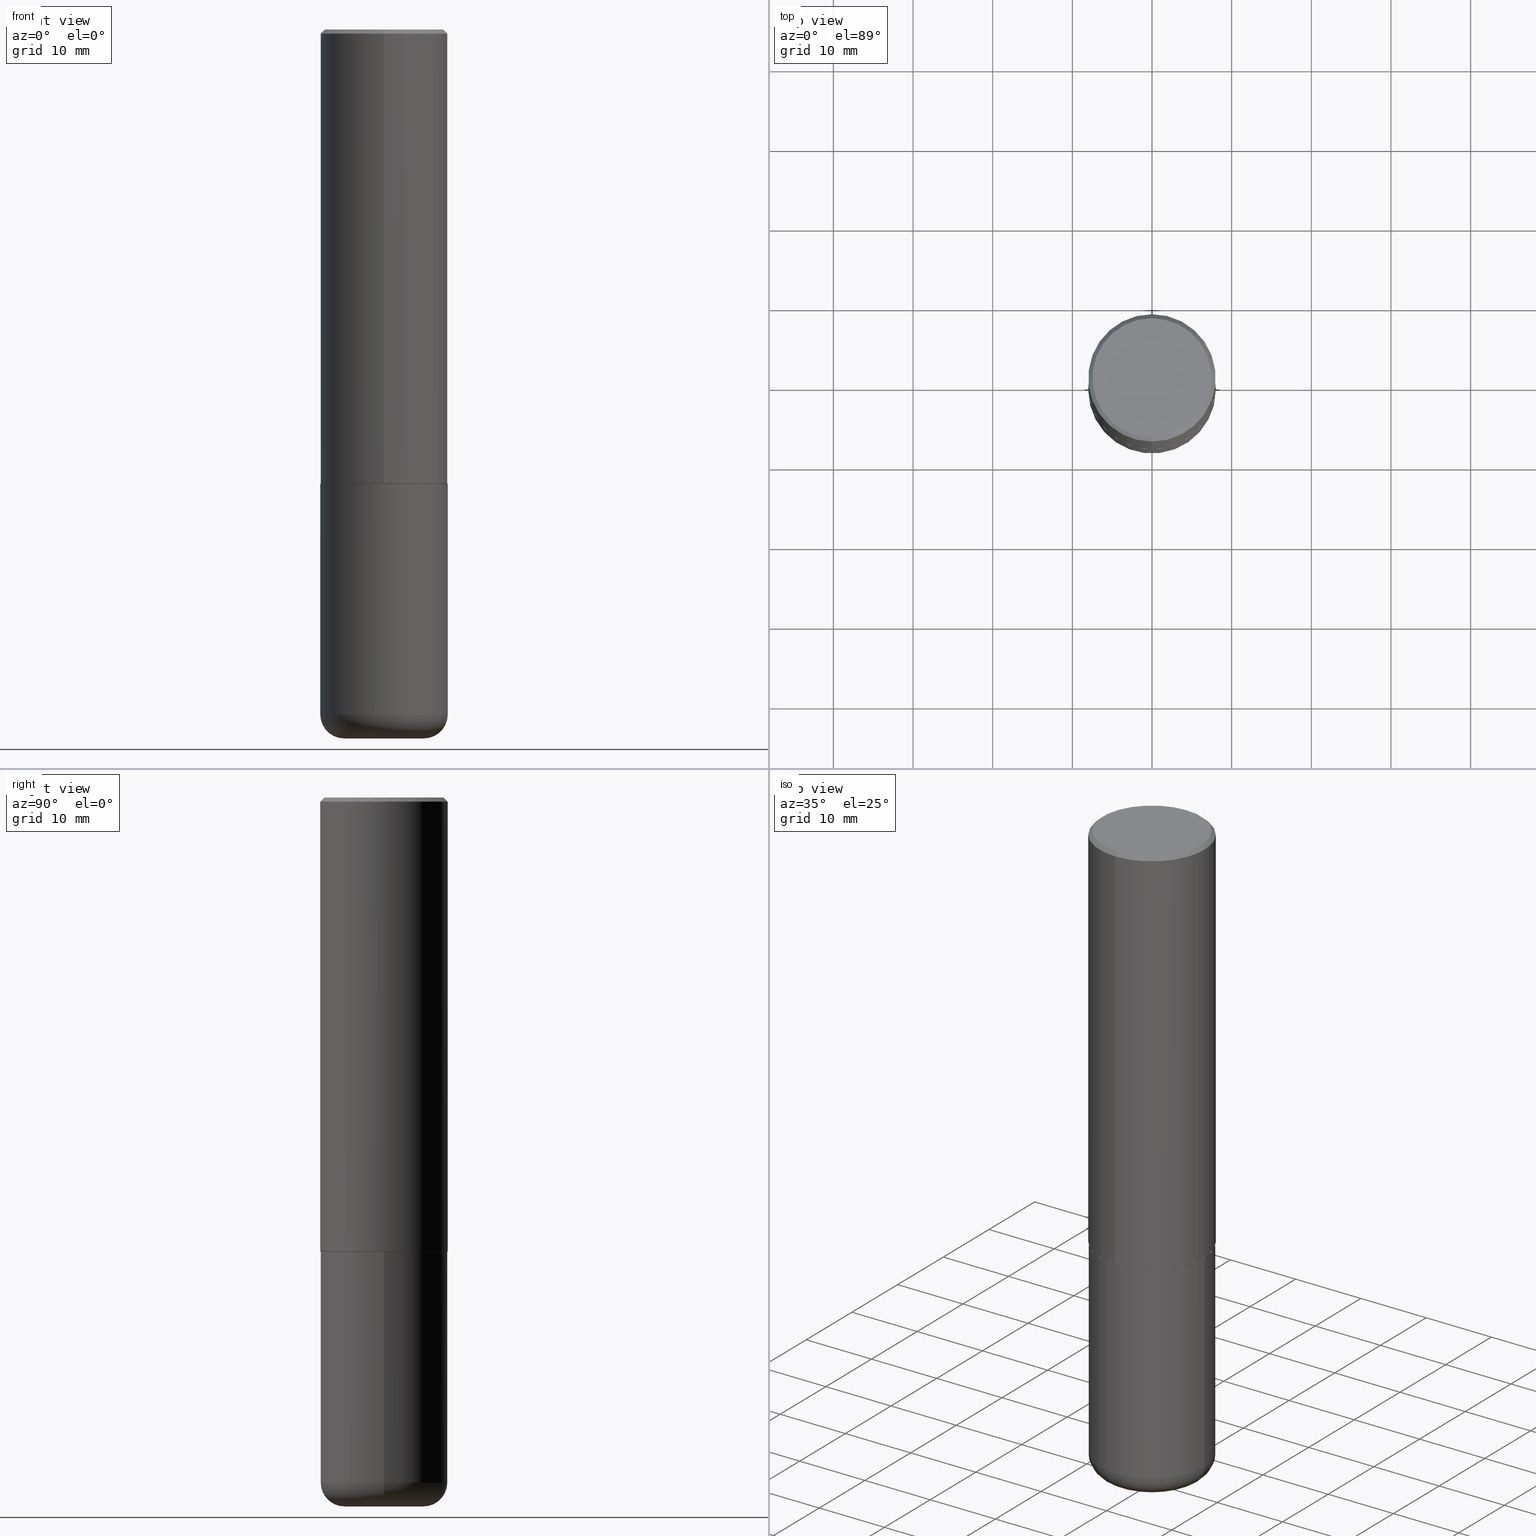
[diagram: canonical four-view strip — front | top / right | iso, engineering-drawing reading convention]
A machine part, canonical four-view strip (front | top / right | iso — engineering-drawing reading convention). The complete STEP part file that produces these views, byte-faithful:
ISO-10303-21;
HEADER;
FILE_DESCRIPTION (( 'STEP AP203' ),
    '1' );
FILE_NAME ('42691.STEP',
    '2024-03-04T02:05:16',
    ( '' ),
    ( '' ),
    'SwSTEP 2.0',
    'SolidWorks 2023',
    '' );
FILE_SCHEMA (( 'CONFIG_CONTROL_DESIGN' ));
ENDSEC;

DATA;
#1 = APPLICATION_CONTEXT ( 'configuration controlled 3d designs of mechanical parts and assemblies' ) ;
#2 = ORIENTED_EDGE ( 'NONE', *, *, #125, .F. ) ;
#3 = PERSON_AND_ORGANIZATION_ROLE ( 'design_owner' ) ;
#4 = ORIENTED_EDGE ( 'NONE', *, *, #296, .T. ) ;
#5 = EDGE_CURVE ( 'NONE', #61, #344, #300, .T. ) ;
#6 = AXIS2_PLACEMENT_3D ( 'NONE', #13, #116, #318 ) ;
#7 = PERSON_AND_ORGANIZATION_ROLE ( 'creator' ) ;
#8 = ORIENTED_EDGE ( 'NONE', *, *, #22, .F. ) ;
#9 = ORIENTED_EDGE ( 'NONE', *, *, #337, .F. ) ;
#10 = ORIENTED_EDGE ( 'NONE', *, *, #206, .F. ) ;
#11 = COORDINATED_UNIVERSAL_TIME_OFFSET ( 5, 0, .BEHIND. ) ;
#12 = APPROVAL_PERSON_ORGANIZATION ( #174, #411, #314 ) ;
#13 = CARTESIAN_POINT ( 'NONE',  ( 1.535981576382081653E-28, -2.508505872621105694E-15, -3.503899999999999793 ) ) ;
#14 = CARTESIAN_POINT ( 'NONE',  ( 5.487876547960064752E-29, -7.835233272497900762E-15, -2.244099999999999540 ) ) ;
#15 = DIRECTION ( 'NONE',  ( 1.000000000000000000, -6.982962677686269866E-15, 0.000000000000000000 ) ) ;
#16 = APPROVAL_ROLE ( '' ) ;
#17 = DIRECTION ( 'NONE',  ( -1.000000000000000000, 6.982962677686265922E-15, -4.876176775795935793E-29 ) ) ;
#18 = DIRECTION ( 'NONE',  ( -6.982962677686265922E-15, -1.000000000000000000, 3.469564049740290009E-15 ) ) ;
#19 = TOROIDAL_SURFACE ( 'NONE', #25, 0.1968500000000000250, 0.1180999999999997468 ) ;
#20 = CARTESIAN_POINT ( 'NONE',  ( 0.3149500000000000077, -1.003451736783519063E-14, -2.244099999999999540 ) ) ;
#21 = LINE ( 'NONE', #196, #251 ) ;
#22 = EDGE_CURVE ( 'NONE', #371, #73, #392, .T. ) ;
#23 = DIRECTION ( 'NONE',  ( -6.982962677686265922E-15, -1.000000000000000000, 3.490574506274840456E-15 ) ) ;
#24 = CIRCLE ( 'NONE', #274, 0.1180999999999997191 ) ;
#25 = AXIS2_PLACEMENT_3D ( 'NONE', #92, #233, #94 ) ;
#26 = LINE ( 'NONE', #160, #71 ) ;
#27 = ORIENTED_EDGE ( 'NONE', *, *, #403, .T. ) ;
#28 = EDGE_CURVE ( 'NONE', #371, #270, #24, .T. ) ;
#29 = CARTESIAN_POINT ( 'NONE',  ( -0.3149500000000000077, -7.590491048500074682E-15, -2.244099999999999540 ) ) ;
#30 = FACE_OUTER_BOUND ( 'NONE', #97, .T. ) ;
#31 = VECTOR ( 'NONE', #101, 39.37007874015748143 ) ;
#32 =( NAMED_UNIT ( * ) PLANE_ANGLE_UNIT ( ) SI_UNIT ( $, .RADIAN. ) );
#33 = DIRECTION ( 'NONE',  ( -2.446102043983074868E-29, 3.490574506274840456E-15, 1.000000000000000000 ) ) ;
#34 = ORIENTED_EDGE ( 'NONE', *, *, #399, .T. ) ;
#35 = ORIENTED_EDGE ( 'NONE', *, *, #95, .F. ) ;
#36 = APPROVAL_PERSON_ORGANIZATION ( #43, #142, #16 ) ;
#37 = VECTOR ( 'NONE', #189, 39.37007874015748854 ) ;
#38 = DIRECTION ( 'NONE',  ( 1.000000000000000000, -6.982962677686267499E-15, 0.000000000000000000 ) ) ;
#39 = ORIENTED_EDGE ( 'NONE', *, *, #231, .F. ) ;
#40 = EDGE_LOOP ( 'NONE', ( #141, #27, #4, #35 ) ) ;
#41 = VECTOR ( 'NONE', #87, 39.37007874015748143 ) ;
#42 = DIRECTION ( 'NONE',  ( -6.982962677686265922E-15, -1.000000000000000000, 3.469564049740290009E-15 ) ) ;
#43 = PERSON_AND_ORGANIZATION ( #343, #237 ) ;
#44 = CARTESIAN_POINT ( 'NONE',  ( 2.234301632597690306E-15, 0.3139499999999921798, -2.244100000000000872 ) ) ;
#45 = ADVANCED_FACE ( 'NONE', ( #64 ), #173, .T. ) ;
#46 = DIRECTION ( 'NONE',  ( -2.445468806185136597E-29, 3.491481338843145583E-15, 1.000000000000000000 ) ) ;
#47 = CARTESIAN_POINT ( 'NONE',  ( 5.487876547960064752E-29, -7.835233272497900762E-15, -2.244099999999999540 ) ) ;
#48 = ADVANCED_FACE ( 'NONE', ( #149 ), #319, .T. ) ;
#49 = FACE_OUTER_BOUND ( 'NONE', #395, .T. ) ;
#50 = DIRECTION ( 'NONE',  ( 2.446102043983074868E-29, -3.490574506274840456E-15, -1.000000000000000000 ) ) ;
#51 = DIRECTION ( 'NONE',  ( 2.446102043983075148E-29, -3.490574506274840456E-15, -1.000000000000000000 ) ) ;
#52 = CLOSED_SHELL ( 'NONE', ( #200, #358, #139, #45, #355, #198 ) ) ;
#53 = AXIS2_PLACEMENT_3D ( 'NONE', #89, #269, #329 ) ;
#54 = PERSON_AND_ORGANIZATION_ROLE ( 'design_supplier' ) ;
#55 = CARTESIAN_POINT ( 'NONE',  ( -2.192301132659548636E-15, -0.3139500000000078339, -2.244099999999998651 ) ) ;
#56 = PERSON_AND_ORGANIZATION ( #343, #237 ) ;
#57 = DIRECTION ( 'NONE',  ( -6.982962677686266711E-15, -1.000000000000000000, 3.480615376543096919E-15 ) ) ;
#58 = VERTEX_POINT ( 'NONE', #322 ) ;
#59 = APPROVAL_DATE_TIME ( #207, #411 ) ;
#60 = CC_DESIGN_APPROVAL ( #106, ( #338 ) ) ;
#61 = VERTEX_POINT ( 'NONE', #248 ) ;
#62 = LOCAL_TIME ( 21, 5, 16.00000000000000000, #11 ) ;
#63 = CARTESIAN_POINT ( 'NONE',  ( 2.237854346276463595E-15, 0.3149499999999924027, -2.243100000000000538 ) ) ;
#64 = FACE_OUTER_BOUND ( 'NONE', #279, .T. ) ;
#65 = DIRECTION ( 'NONE',  ( -2.445468806185136597E-29, 3.491481338843145583E-15, 1.000000000000000000 ) ) ;
#66 = CC_DESIGN_PERSON_AND_ORGANIZATION_ASSIGNMENT ( #96, #3, ( #321 ) ) ;
#67 = CARTESIAN_POINT ( 'NONE',  ( -6.780248536777034301E-45, 9.675378321561535985E-31, 2.771858415905051370E-16 ) ) ;
#68 = ORIENTED_EDGE ( 'NONE', *, *, #69, .F. ) ;
#69 = EDGE_CURVE ( 'NONE', #270, #361, #70, .T. ) ;
#70 = CIRCLE ( 'NONE', #368, 0.3149500000000000077 ) ;
#71 = VECTOR ( 'NONE', #292, 39.37007874015748143 ) ;
#72 = EDGE_LOOP ( 'NONE', ( #276, #310, #307, #2 ) ) ;
#73 = VERTEX_POINT ( 'NONE', #400 ) ;
#74 = CARTESIAN_POINT ( 'NONE',  ( 5.489297596902418618E-29, -7.833198249531369174E-15, -2.244099999999999540 ) ) ;
#75 = CC_DESIGN_APPROVAL ( #411, ( #85 ) ) ;
#76 =( CONVERSION_BASED_UNIT ( 'INCH', #201 ) LENGTH_UNIT ( ) NAMED_UNIT ( #157 ) );
#77 = MANIFOLD_SOLID_BREP ( 'Body-Move/Copy2[1]', #52 ) ;
#78 = AXIS2_PLACEMENT_3D ( 'NONE', #14, #65, #365 ) ;
#79 = CARTESIAN_POINT ( 'NONE',  ( 2.230748918918889014E-15, 0.3139499999999921798, -2.244100000000000872 ) ) ;
#80 = ADVANCED_FACE ( 'NONE', ( #407 ), #110, .T. ) ;
#81 = CARTESIAN_POINT ( 'NONE',  ( 5.487876547960064752E-29, -7.835233272497900762E-15, -2.244099999999999540 ) ) ;
#82 = FACE_OUTER_BOUND ( 'NONE', #197, .T. ) ;
#83 = DIRECTION ( 'NONE',  ( 1.000000000000000000, -6.982962677686266711E-15, 0.000000000000000000 ) ) ;
#84 = CIRCLE ( 'NONE', #378, 0.3139500000000000068 ) ;
#85 = PRODUCT_DEFINITION ( 'UNKNOWN', '', #338, #298 ) ;
#86 = DIRECTION ( 'NONE',  ( -6.982962677686266711E-15, -1.000000000000000000, 3.491481338843145583E-15 ) ) ;
#87 = DIRECTION ( 'NONE',  ( -4.851104656540957964E-15, -0.7071067811865491270, -0.7071067811865459074 ) ) ;
#88 = ORIENTED_EDGE ( 'NONE', *, *, #224, .F. ) ;
#89 = CARTESIAN_POINT ( 'NONE',  ( 0.000000000000000000, 0.000000000000000000, 0.000000000000000000 ) ) ;
#90 = AXIS2_PLACEMENT_3D ( 'NONE', #353, #410, #408 ) ;
#91 = PRODUCT_DEFINITION_SHAPE ( 'NONE', 'NONE',  #85 ) ;
#92 = CARTESIAN_POINT ( 'NONE',  ( 8.279868283981634472E-29, -1.182145751705512057E-14, -3.385799999999999699 ) ) ;
#93 = COORDINATED_UNIVERSAL_TIME_OFFSET ( 5, 0, .BEHIND. ) ;
#94 = DIRECTION ( 'NONE',  ( 1.000000000000000000, -6.982962677686263555E-15, 4.883557194083111780E-29 ) ) ;
#95 = EDGE_CURVE ( 'NONE', #418, #211, #245, .T. ) ;
#96 = PERSON_AND_ORGANIZATION ( #343, #237 ) ;
#97 = EDGE_LOOP ( 'NONE', ( #247, #280 ) ) ;
#98 = AXIS2_PLACEMENT_3D ( 'NONE', #372, #185, #42 ) ;
#99 =( NAMED_UNIT ( * ) SI_UNIT ( $, .STERADIAN. ) SOLID_ANGLE_UNIT ( ) );
#100 = ORIENTED_EDGE ( 'NONE', *, *, #231, .T. ) ;
#101 = DIRECTION ( 'NONE',  ( -2.446102043983075148E-29, 3.490574506274840456E-15, 1.000000000000000000 ) ) ;
#102 = VERTEX_POINT ( 'NONE', #20 ) ;
#103 = ADVANCED_FACE ( 'NONE', ( #290 ), #176, .T. ) ;
#104 = EDGE_LOOP ( 'NONE', ( #381, #138, #272, #39 ) ) ;
#105 = COORDINATED_UNIVERSAL_TIME_OFFSET ( 5, 0, .BEHIND. ) ;
#106 = APPROVAL ( #328, 'UNSPECIFIED' ) ;
#107 = AXIS2_PLACEMENT_3D ( 'NONE', #47, #377, #83 ) ;
#108 = EDGE_LOOP ( 'NONE', ( #203, #268, #260, #10 ) ) ;
#109 = APPLICATION_CONTEXT ( 'configuration controlled 3d designs of mechanical parts and assemblies' ) ;
#110 = CYLINDRICAL_SURFACE ( 'NONE', #146, 0.3149500000000000632 ) ;
#111 = DIRECTION ( 'NONE',  ( 0.000000000000000000, 0.000000000000000000, 1.000000000000000000 ) ) ;
#112 = EDGE_CURVE ( 'NONE', #211, #418, #266, .T. ) ;
#113 = LINE ( 'NONE', #79, #326 ) ;
#114 = APPROVAL_DATE_TIME ( #152, #142 ) ;
#115 = AXIS2_PLACEMENT_3D ( 'NONE', #74, #118, #182 ) ;
#116 = DIRECTION ( 'NONE',  ( 2.438088387897960049E-29, -3.491481338843145188E-15, -1.000000000000000000 ) ) ;
#117 = DIRECTION ( 'NONE',  ( -2.446102043983075148E-29, 3.490574506274840456E-15, 1.000000000000000000 ) ) ;
#118 = DIRECTION ( 'NONE',  ( -2.446102043983075148E-29, 3.490574506274840456E-15, 1.000000000000000000 ) ) ;
#119 = PLANE ( 'NONE',  #340 ) ;
#120 = ORIENTED_EDGE ( 'NONE', *, *, #281, .F. ) ;
#121 = CARTESIAN_POINT ( 'NONE',  ( 2.059624841783561302E-15, 0.2949499999999996014, -8.909520298305101196E-16 ) ) ;
#122 = UNCERTAINTY_MEASURE_WITH_UNIT (LENGTH_MEASURE( 1.000000000000000082E-05 ), #76, 'distance_accuracy_value', 'NONE');
#123 = ORIENTED_EDGE ( 'NONE', *, *, #337, .T. ) ;
#124 = DATE_AND_TIME ( #181, #186 ) ;
#125 = EDGE_CURVE ( 'NONE', #61, #191, #376, .T. ) ;
#126 = CYLINDRICAL_SURFACE ( 'NONE', #53, 0.3149500000000000632 ) ;
#127 = APPROVAL_ROLE ( '' ) ;
#128 = CARTESIAN_POINT ( 'NONE',  ( 4.892204087966167602E-31, -6.981149012549705614E-17, -0.02000000000000006981 ) ) ;
#129 = AXIS2_PLACEMENT_3D ( 'NONE', #250, #284, #156 ) ;
#130 = ORIENTED_EDGE ( 'NONE', *, *, #112, .F. ) ;
#131 = AXIS2_PLACEMENT_3D ( 'NONE', #214, #375, #317 ) ;
#132 = CARTESIAN_POINT ( 'NONE',  ( 4.892204087966167602E-31, -6.981149012549705614E-17, -0.02000000000000006981 ) ) ;
#133 = ORIENTED_EDGE ( 'NONE', *, *, #287, .F. ) ;
#134 = EDGE_CURVE ( 'NONE', #361, #270, #275, .T. ) ;
#135 = PERSON_AND_ORGANIZATION ( #343, #237 ) ;
#136 = DIRECTION ( 'NONE',  ( 7.105427357601001859E-15, 1.000000000000000000, -3.491481338843145583E-15 ) ) ;
#137 = CC_DESIGN_DATE_AND_TIME_ASSIGNMENT ( #249, #373, ( #258 ) ) ;
#138 = ORIENTED_EDGE ( 'NONE', *, *, #190, .T. ) ;
#139 = ADVANCED_FACE ( 'NONE', ( #254 ), #315, .F. ) ;
#140 = DIRECTION ( 'NONE',  ( -6.982962677686265922E-15, -1.000000000000000000, 3.490574506274840456E-15 ) ) ;
#141 = ORIENTED_EDGE ( 'NONE', *, *, #168, .F. ) ;
#142 = APPROVAL ( #183, 'UNSPECIFIED' ) ;
#143 = EDGE_LOOP ( 'NONE', ( #34, #171 ) ) ;
#144 = EDGE_LOOP ( 'NONE', ( #175, #234, #123, #68 ) ) ;
#145 = APPROVAL_PERSON_ORGANIZATION ( #56, #106, #127 ) ;
#146 = AXIS2_PLACEMENT_3D ( 'NONE', #291, #346, #349 ) ;
#147 = CONICAL_SURFACE ( 'NONE', #308, 0.3149499999999998967, 0.7853981633974471688 ) ;
#148 = AXIS2_PLACEMENT_3D ( 'NONE', #255, #374, #18 ) ;
#149 = FACE_OUTER_BOUND ( 'NONE', #242, .T. ) ;
#150 = CARTESIAN_POINT ( 'NONE',  ( 0.000000000000000000, 0.000000000000000000, 0.000000000000000000 ) ) ;
#151 = DIRECTION ( 'NONE',  ( -6.982962677686264344E-15, -1.000000000000000000, 3.496670018878890283E-15 ) ) ;
#152 = DATE_AND_TIME ( #246, #299 ) ;
#153 = LINE ( 'NONE', #288, #289 ) ;
#154 = VECTOR ( 'NONE', #352, 39.37007874015748143 ) ;
#155 = EDGE_CURVE ( 'NONE', #58, #191, #351, .T. ) ;
#156 = DIRECTION ( 'NONE',  ( 6.982962677686264344E-15, 1.000000000000000000, -3.496670018878890283E-15 ) ) ;
#157 = DIMENSIONAL_EXPONENTS ( 1.000000000000000000, 0.000000000000000000, 0.000000000000000000, 0.000000000000000000, 0.000000000000000000, 0.000000000000000000, 0.000000000000000000 ) ;
#158 = DIRECTION ( 'NONE',  ( -2.445468806185136597E-29, 3.491481338843145583E-15, 1.000000000000000000 ) ) ;
#159 = CC_DESIGN_PERSON_AND_ORGANIZATION_ASSIGNMENT ( #311, #179, ( #258 ) ) ;
#160 = CARTESIAN_POINT ( 'NONE',  ( 0.3149500000000000077, -2.199284095337289871E-15, 1.535751875536930130E-29 ) ) ;
#161 = DATE_TIME_ROLE ( 'creation_date' ) ;
#162 = AXIS2_PLACEMENT_3D ( 'NONE', #67, #205, #398 ) ;
#163 = FACE_OUTER_BOUND ( 'NONE', #312, .T. ) ;
#164 = EDGE_CURVE ( 'NONE', #309, #102, #193, .T. ) ;
#165 = DIRECTION ( 'NONE',  ( 6.982962677686265922E-15, 1.000000000000000000, -3.490574506274840456E-15 ) ) ;
#166 = VERTEX_POINT ( 'NONE', #402 ) ;
#167 = CARTESIAN_POINT ( 'NONE',  ( -6.780248536777034301E-45, 9.675378321561535985E-31, 2.771858415905051370E-16 ) ) ;
#168 = EDGE_CURVE ( 'NONE', #178, #418, #113, .T. ) ;
#169 = AXIS2_PLACEMENT_3D ( 'NONE', #187, #158, #264 ) ;
#170 = COORDINATED_UNIVERSAL_TIME_OFFSET ( 5, 0, .BEHIND. ) ;
#171 = ORIENTED_EDGE ( 'NONE', *, *, #164, .T. ) ;
#172 = CARTESIAN_POINT ( 'NONE',  ( -0.1968500000000000250, -1.020935062930371351E-14, -3.503899999999999348 ) ) ;
#173 = CYLINDRICAL_SURFACE ( 'NONE', #265, 0.3149500000000000077 ) ;
#174 = PERSON_AND_ORGANIZATION ( #343, #237 ) ;
#175 = ORIENTED_EDGE ( 'NONE', *, *, #28, .F. ) ;
#176 = CONICAL_SURFACE ( 'NONE', #115, 0.3139500000000000068, 0.7853981633974141952 ) ;
#177 = ORIENTED_EDGE ( 'NONE', *, *, #190, .F. ) ;
#178 = VERTEX_POINT ( 'NONE', #44 ) ;
#179 = PERSON_AND_ORGANIZATION_ROLE ( 'classification_officer' ) ;
#180 = DIRECTION ( 'NONE',  ( -2.445468806185136877E-29, 3.491481338843145188E-15, 1.000000000000000000 ) ) ;
#181 = CALENDAR_DATE ( 2024, 3, 3 ) ;
#182 = DIRECTION ( 'NONE',  ( -6.982962677686266711E-15, -1.000000000000000000, 3.480615376543096919E-15 ) ) ;
#183 = APPROVAL_STATUS ( 'not_yet_approved' ) ;
#184 = DIRECTION ( 'NONE',  ( 1.000000000000000000, -6.982962677686266711E-15, 4.876176775795936353E-29 ) ) ;
#185 = DIRECTION ( 'NONE',  ( -2.446102043983075148E-29, 3.490574506274840456E-15, 1.000000000000000000 ) ) ;
#186 = LOCAL_TIME ( 21, 5, 16.00000000000000000, #339 ) ;
#187 = CARTESIAN_POINT ( 'NONE',  ( 0.000000000000000000, 0.000000000000000000, 0.000000000000000000 ) ) ;
#188 = PLANE ( 'NONE',  #222 ) ;
#189 = DIRECTION ( 'NONE',  ( -4.937700262164378437E-15, -0.7071067811865208164, 0.7071067811865739960 ) ) ;
#190 = EDGE_CURVE ( 'NONE', #270, #309, #153, .T. ) ;
#191 = VERTEX_POINT ( 'NONE', #313 ) ;
#192 = PERSON_AND_ORGANIZATION ( #343, #237 ) ;
#193 = CIRCLE ( 'NONE', #107, 0.3149500000000000077 ) ;
#194 = CARTESIAN_POINT ( 'NONE',  ( -2.092108864420426059E-15, -0.2949499999999996014, 1.306730792216267924E-15 ) ) ;
#195 = ORIENTED_EDGE ( 'NONE', *, *, #69, .T. ) ;
#196 = CARTESIAN_POINT ( 'NONE',  ( -2.199284095337289871E-15, -0.3149500000000000632, 1.099356440751261260E-15 ) ) ;
#197 = EDGE_LOOP ( 'NONE', ( #391, #8 ) ) ;
#198 = ADVANCED_FACE ( 'NONE', ( #82 ), #404, .T. ) ;
#199 = DIRECTION ( 'NONE',  ( -6.982962677686266711E-15, -1.000000000000000000, 3.480615376543096919E-15 ) ) ;
#200 = ADVANCED_FACE ( 'NONE', ( #221 ), #350, .T. ) ;
#201 = LENGTH_MEASURE_WITH_UNIT ( LENGTH_MEASURE( 0.02539999999999999897 ), #306 );
#202 = MECHANICAL_CONTEXT ( 'NONE', #1, 'mechanical' ) ;
#203 = ORIENTED_EDGE ( 'NONE', *, *, #389, .F. ) ;
#204 = CARTESIAN_POINT ( 'NONE',  ( 2.237854346276435590E-15, 0.3149500000000000632, -1.099356440751261260E-15 ) ) ;
#205 = DIRECTION ( 'NONE',  ( -2.446102043983075148E-29, 3.490574506274840456E-15, 1.000000000000000000 ) ) ;
#206 = EDGE_CURVE ( 'NONE', #191, #58, #293, .T. ) ;
#207 = DATE_AND_TIME ( #303, #332 ) ;
#208 = ORIENTED_EDGE ( 'NONE', *, *, #168, .T. ) ;
#209 = SHAPE_DEFINITION_REPRESENTATION ( #91, #236 ) ;
#210 = AXIS2_PLACEMENT_3D ( 'NONE', #354, #86, #387 ) ;
#211 = VERTEX_POINT ( 'NONE', #225 ) ;
#212 = CARTESIAN_POINT ( 'NONE',  ( 8.568678149992098353E-29, -1.223380146317249628E-14, -3.503899999999999348 ) ) ;
#213 = PRODUCT_RELATED_PRODUCT_CATEGORY ( 'detail', '', ( #321 ) ) ;
#214 = CARTESIAN_POINT ( 'NONE',  ( 8.279868283981634472E-29, -1.182145751705512057E-14, -3.385799999999999699 ) ) ;
#215 = AXIS2_PLACEMENT_3D ( 'NONE', #212, #341, #38 ) ;
#216 = AXIS2_PLACEMENT_3D ( 'NONE', #150, #111, #238 ) ;
#217 = DIRECTION ( 'NONE',  ( 5.024295867787889629E-15, 0.7071067811865257013, 0.7071067811865691111 ) ) ;
#218 = MANIFOLD_SOLID_BREP ( 'Body-Move/Copy2[2]', #345 ) ;
#219 = DIRECTION ( 'NONE',  ( -2.445468806185136597E-29, 3.491481338843145583E-15, 1.000000000000000000 ) ) ;
#220 = CC_DESIGN_DATE_AND_TIME_ASSIGNMENT ( #124, #161, ( #85 ) ) ;
#221 = FACE_OUTER_BOUND ( 'NONE', #104, .T. ) ;
#222 = AXIS2_PLACEMENT_3D ( 'NONE', #323, #33, #140 ) ;
#223 = CARTESIAN_POINT ( 'NONE',  ( 0.000000000000000000, 0.000000000000000000, 0.000000000000000000 ) ) ;
#224 = EDGE_CURVE ( 'NONE', #211, #58, #21, .T. ) ;
#225 = CARTESIAN_POINT ( 'NONE',  ( -2.199284095337236228E-15, -0.3149500000000081124, -2.243099999999998317 ) ) ;
#226 = DIRECTION ( 'NONE',  ( -2.446102043983075148E-29, 3.490574506274840456E-15, 1.000000000000000000 ) ) ;
#227 = PERSON_AND_ORGANIZATION ( #343, #237 ) ;
#228 = CC_DESIGN_SECURITY_CLASSIFICATION ( #258, ( #338 ) ) ;
#229 = CIRCLE ( 'NONE', #90, 0.1968500000000000250 ) ;
#230 = CARTESIAN_POINT ( 'NONE',  ( -0.3149499999999998967, -9.583603170778684587E-15, -3.385799999999999699 ) ) ;
#231 = EDGE_CURVE ( 'NONE', #361, #102, #26, .T. ) ;
#232 = DATE_AND_TIME ( #261, #367 ) ;
#233 = DIRECTION ( 'NONE',  ( -2.445468806185136597E-29, 3.491481338843145583E-15, 1.000000000000000000 ) ) ;
#234 = ORIENTED_EDGE ( 'NONE', *, *, #22, .T. ) ;
#235 = CARTESIAN_POINT ( 'NONE',  ( 8.279868283981634472E-29, -1.182145751705512057E-14, -3.385799999999999699 ) ) ;
#236 = ADVANCED_BREP_SHAPE_REPRESENTATION ( '42691', ( #77, #218, #216 ), #359 ) ;
#237 = ORGANIZATION ( 'UNSPECIFIED', 'UNSPECIFIED', '' ) ;
#238 = DIRECTION ( 'NONE',  ( 1.000000000000000000, 0.000000000000000000, 0.000000000000000000 ) ) ;
#239 = AXIS2_PLACEMENT_3D ( 'NONE', #132, #412, #295 ) ;
#240 = DIRECTION ( 'NONE',  ( -1.000000000000000000, 7.105427357601005014E-15, 0.000000000000000000 ) ) ;
#241 = EDGE_CURVE ( 'NONE', #73, #371, #229, .T. ) ;
#242 = EDGE_LOOP ( 'NONE', ( #120, #243, #282, #342 ) ) ;
#243 = ORIENTED_EDGE ( 'NONE', *, *, #5, .F. ) ;
#244 = ORIENTED_EDGE ( 'NONE', *, *, #403, .F. ) ;
#245 = CIRCLE ( 'NONE', #98, 0.3149500000000002853 ) ;
#246 = CALENDAR_DATE ( 2024, 3, 3 ) ;
#247 = ORIENTED_EDGE ( 'NONE', *, *, #5, .T. ) ;
#248 = CARTESIAN_POINT ( 'NONE',  ( 2.129454468560424995E-15, 0.2949499999999996014, -7.523591090352575511E-16 ) ) ;
#249 = DATE_AND_TIME ( #347, #62 ) ;
#250 = CARTESIAN_POINT ( 'NONE',  ( 4.892204087966167602E-31, -6.981149012549705614E-17, -0.02000000000000006981 ) ) ;
#251 = VECTOR ( 'NONE', #384, 39.37007874015748143 ) ;
#252 = DIRECTION ( 'NONE',  ( 2.438088387897960049E-29, -3.491481338843145188E-15, -1.000000000000000000 ) ) ;
#253 = EDGE_CURVE ( 'NONE', #344, #61, #397, .T. ) ;
#254 = FACE_OUTER_BOUND ( 'NONE', #143, .T. ) ;
#255 = CARTESIAN_POINT ( 'NONE',  ( 5.486851494858434265E-29, -7.829707675025093274E-15, -2.243099999999999206 ) ) ;
#256 = ADVANCED_FACE ( 'NONE', ( #30 ), #119, .F. ) ;
#257 = AXIS2_PLACEMENT_3D ( 'NONE', #81, #252, #17 ) ;
#258 = SECURITY_CLASSIFICATION ( '', '', #386 ) ;
#259 = LINE ( 'NONE', #55, #37 ) ;
#260 = ORIENTED_EDGE ( 'NONE', *, *, #224, .T. ) ;
#261 = CALENDAR_DATE ( 2024, 3, 3 ) ;
#262 = LINE ( 'NONE', #357, #41 ) ;
#263 = PERSON_AND_ORGANIZATION_ROLE ( 'creator' ) ;
#264 = DIRECTION ( 'NONE',  ( 1.000000000000000000, -6.982962677686266711E-15, 4.876176775795936353E-29 ) ) ;
#265 = AXIS2_PLACEMENT_3D ( 'NONE', #223, #46, #184 ) ;
#266 = CIRCLE ( 'NONE', #148, 0.3149500000000002853 ) ;
#267 = DIRECTION ( 'NONE',  ( 6.982962677686264344E-15, 1.000000000000000000, -3.496670018878890283E-15 ) ) ;
#268 = ORIENTED_EDGE ( 'NONE', *, *, #95, .T. ) ;
#269 = DIRECTION ( 'NONE',  ( -2.446102043983075148E-29, 3.490574506274840456E-15, 1.000000000000000000 ) ) ;
#270 = VERTEX_POINT ( 'NONE', #230 ) ;
#271 = DIRECTION ( 'NONE',  ( -6.982962677686266711E-15, -1.000000000000000000, 3.480615376543096919E-15 ) ) ;
#272 = ORIENTED_EDGE ( 'NONE', *, *, #399, .F. ) ;
#273 = APPLICATION_PROTOCOL_DEFINITION ( 'international standard', 'config_control_design', 1994, #109 ) ;
#274 = AXIS2_PLACEMENT_3D ( 'NONE', #336, #136, #240 ) ;
#275 = CIRCLE ( 'NONE', #131, 0.3149500000000000077 ) ;
#276 = ORIENTED_EDGE ( 'NONE', *, *, #253, .F. ) ;
#277 = CC_DESIGN_PERSON_AND_ORGANIZATION_ASSIGNMENT ( #135, #7, ( #85 ) ) ;
#278 = DIRECTION ( 'NONE',  ( -2.446102043983075148E-29, 3.490574506274840456E-15, 1.000000000000000000 ) ) ;
#279 = EDGE_LOOP ( 'NONE', ( #177, #195, #100, #383 ) ) ;
#280 = ORIENTED_EDGE ( 'NONE', *, *, #253, .T. ) ;
#281 = EDGE_CURVE ( 'NONE', #344, #58, #262, .T. ) ;
#282 = ORIENTED_EDGE ( 'NONE', *, *, #125, .T. ) ;
#283 = CIRCLE ( 'NONE', #78, 0.3149500000000000077 ) ;
#284 = DIRECTION ( 'NONE',  ( 2.446102043983075148E-29, -3.490574506274840456E-15, -1.000000000000000000 ) ) ;
#285 = LINE ( 'NONE', #204, #31 ) ;
#286 = CARTESIAN_POINT ( 'NONE',  ( 8.279868283981634472E-29, -1.182145751705512057E-14, -3.385799999999999699 ) ) ;
#287 = EDGE_CURVE ( 'NONE', #166, #178, #409, .T. ) ;
#288 = CARTESIAN_POINT ( 'NONE',  ( -0.3149500000000000077, 2.237854346276435590E-15, -1.549218606675782676E-29 ) ) ;
#289 = VECTOR ( 'NONE', #180, 39.37007874015748143 ) ;
#290 = FACE_OUTER_BOUND ( 'NONE', #40, .T. ) ;
#291 = CARTESIAN_POINT ( 'NONE',  ( 0.000000000000000000, 0.000000000000000000, 0.000000000000000000 ) ) ;
#292 = DIRECTION ( 'NONE',  ( -2.445468806185136877E-29, 3.491481338843145188E-15, 1.000000000000000000 ) ) ;
#293 = CIRCLE ( 'NONE', #239, 0.3149499999999998967 ) ;
#294 = DIRECTION ( 'NONE',  ( -2.446102043983075148E-29, 3.490574506274840456E-15, 1.000000000000000000 ) ) ;
#295 = DIRECTION ( 'NONE',  ( -6.982962677686264344E-15, -1.000000000000000000, 3.496670018878890283E-15 ) ) ;
#296 = EDGE_CURVE ( 'NONE', #166, #211, #259, .T. ) ;
#297 = FACE_OUTER_BOUND ( 'NONE', #72, .T. ) ;
#298 = DESIGN_CONTEXT ( 'detailed design', #109, 'design' ) ;
#299 = LOCAL_TIME ( 21, 5, 16.00000000000000000, #105 ) ;
#300 = CIRCLE ( 'NONE', #162, 0.2949499999999996014 ) ;
#301 = AXIS2_PLACEMENT_3D ( 'NONE', #382, #294, #57 ) ;
#302 = FACE_OUTER_BOUND ( 'NONE', #304, .T. ) ;
#303 = CALENDAR_DATE ( 2024, 3, 3 ) ;
#304 = EDGE_LOOP ( 'NONE', ( #330, #363, #388, #88 ) ) ;
#305 = ADVANCED_FACE ( 'NONE', ( #302 ), #126, .T. ) ;
#306 =( LENGTH_UNIT ( ) NAMED_UNIT ( * ) SI_UNIT ( $, .METRE. ) );
#307 = ORIENTED_EDGE ( 'NONE', *, *, #155, .T. ) ;
#308 = AXIS2_PLACEMENT_3D ( 'NONE', #128, #51, #267 ) ;
#309 = VERTEX_POINT ( 'NONE', #29 ) ;
#310 = ORIENTED_EDGE ( 'NONE', *, *, #281, .T. ) ;
#311 = PERSON_AND_ORGANIZATION ( #343, #237 ) ;
#312 = EDGE_LOOP ( 'NONE', ( #396, #208, #130, #327 ) ) ;
#313 = CARTESIAN_POINT ( 'NONE',  ( 2.199284095337288688E-15, 0.3149499999999997857, -0.02000000000000116962 ) ) ;
#314 = APPROVAL_ROLE ( '' ) ;
#315 = PLANE ( 'NONE',  #257 ) ;
#316 = ADVANCED_FACE ( 'NONE', ( #297 ), #147, .T. ) ;
#317 = DIRECTION ( 'NONE',  ( 1.000000000000000000, -6.982962677686269866E-15, 0.000000000000000000 ) ) ;
#318 = DIRECTION ( 'NONE',  ( -1.000000000000000000, 6.982962677686265922E-15, -4.876176775795935793E-29 ) ) ;
#319 = CONICAL_SURFACE ( 'NONE', #129, 0.3149499999999998967, 0.7853981633974471688 ) ;
#320 = TOROIDAL_SURFACE ( 'NONE', #369, 0.1968500000000000250, 0.1180999999999997468 ) ;
#321 = PRODUCT ( '42691', '42691', '', ( #202 ) ) ;
#322 = CARTESIAN_POINT ( 'NONE',  ( -2.160713844398142179E-15, -0.3149499999999999522, -0.01999999999999896652 ) ) ;
#323 = CARTESIAN_POINT ( 'NONE',  ( 5.489297596902418618E-29, -7.833198249531369174E-15, -2.244099999999999540 ) ) ;
#324 = FACE_OUTER_BOUND ( 'NONE', #366, .T. ) ;
#325 = CC_DESIGN_APPROVAL ( #142, ( #258 ) ) ;
#326 = VECTOR ( 'NONE', #217, 39.37007874015748854 ) ;
#327 = ORIENTED_EDGE ( 'NONE', *, *, #296, .F. ) ;
#328 = APPROVAL_STATUS ( 'not_yet_approved' ) ;
#329 = DIRECTION ( 'NONE',  ( -6.982962677686265922E-15, -1.000000000000000000, 3.490574506274840456E-15 ) ) ;
#330 = ORIENTED_EDGE ( 'NONE', *, *, #112, .T. ) ;
#331 = DIRECTION ( 'NONE',  ( -2.445468806185136597E-29, 3.491481338843145583E-15, 1.000000000000000000 ) ) ;
#332 = LOCAL_TIME ( 21, 5, 16.00000000000000000, #170 ) ;
#333 = AXIS2_PLACEMENT_3D ( 'NONE', #406, #117, #151 ) ;
#334 = CARTESIAN_POINT ( 'NONE',  ( 5.489297596902418618E-29, -7.833198249531369174E-15, -2.244099999999999540 ) ) ;
#335 = ORIENTED_EDGE ( 'NONE', *, *, #28, .T. ) ;
#336 = CARTESIAN_POINT ( 'NONE',  ( -0.1968500000000000250, -1.042275414171136357E-14, -3.385799999999999699 ) ) ;
#337 = EDGE_CURVE ( 'NONE', #73, #361, #385, .T. ) ;
#338 = PRODUCT_DEFINITION_FORMATION_WITH_SPECIFIED_SOURCE ( 'ANY', '', #321, .NOT_KNOWN. ) ;
#339 = COORDINATED_UNIVERSAL_TIME_OFFSET ( 5, 0, .BEHIND. ) ;
#340 = AXIS2_PLACEMENT_3D ( 'NONE', #121, #50, #165 ) ;
#341 = DIRECTION ( 'NONE',  ( -2.445468806185136597E-29, 3.491481338843145583E-15, 1.000000000000000000 ) ) ;
#342 = ORIENTED_EDGE ( 'NONE', *, *, #206, .T. ) ;
#343 = PERSON ( 'UNSPECIFIED', 'UNSPECIFIED', 'UNSPECIFIED', ('UNSPECIFIED'), ('UNSPECIFIED'), ('UNSPECIFIED') ) ;
#344 = VERTEX_POINT ( 'NONE', #194 ) ;
#345 = CLOSED_SHELL ( 'NONE', ( #360, #305, #316, #48, #80, #103, #364, #256 ) ) ;
#346 = DIRECTION ( 'NONE',  ( -2.446102043983075148E-29, 3.490574506274840456E-15, 1.000000000000000000 ) ) ;
#347 = CALENDAR_DATE ( 2024, 3, 3 ) ;
#348 = CARTESIAN_POINT ( 'NONE',  ( 2.199284095337288688E-15, 0.3149499999999997857, -0.02000000000000116962 ) ) ;
#349 = DIRECTION ( 'NONE',  ( -6.982962677686265922E-15, -1.000000000000000000, 3.490574506274840456E-15 ) ) ;
#350 = CYLINDRICAL_SURFACE ( 'NONE', #169, 0.3149500000000000077 ) ;
#351 = CIRCLE ( 'NONE', #333, 0.3149499999999998967 ) ;
#352 = DIRECTION ( 'NONE',  ( 4.937700262164541731E-15, 0.7071067811865442421, -0.7071067811865507924 ) ) ;
#353 = CARTESIAN_POINT ( 'NONE',  ( 8.568678149992098353E-29, -1.223380146317249628E-14, -3.503899999999999348 ) ) ;
#354 = CARTESIAN_POINT ( 'NONE',  ( 0.1968500000000000250, -1.319605372015766376E-14, -3.385799999999999699 ) ) ;
#355 = ADVANCED_FACE ( 'NONE', ( #390 ), #19, .T. ) ;
#356 = CARTESIAN_POINT ( 'NONE',  ( 5.489297596902418618E-29, -7.833198249531369174E-15, -2.244099999999999540 ) ) ;
#357 = CARTESIAN_POINT ( 'NONE',  ( -2.160713844398142179E-15, -0.3149499999999999522, -0.01999999999999896652 ) ) ;
#358 = ADVANCED_FACE ( 'NONE', ( #324 ), #320, .T. ) ;
#359 =( GEOMETRIC_REPRESENTATION_CONTEXT ( 3 ) GLOBAL_UNCERTAINTY_ASSIGNED_CONTEXT ( ( #122 ) ) GLOBAL_UNIT_ASSIGNED_CONTEXT ( ( #76, #32, #99 ) ) REPRESENTATION_CONTEXT ( 'NONE', 'WORKASPACE' ) );
#360 = ADVANCED_FACE ( 'NONE', ( #163 ), #414, .T. ) ;
#361 = VERTEX_POINT ( 'NONE', #416 ) ;
#362 = APPLICATION_PROTOCOL_DEFINITION ( 'international standard', 'config_control_design', 1994, #1 ) ;
#363 = ORIENTED_EDGE ( 'NONE', *, *, #389, .T. ) ;
#364 = ADVANCED_FACE ( 'NONE', ( #49 ), #188, .F. ) ;
#365 = DIRECTION ( 'NONE',  ( 1.000000000000000000, -6.982962677686266711E-15, 0.000000000000000000 ) ) ;
#366 = EDGE_LOOP ( 'NONE', ( #370, #335, #394, #9 ) ) ;
#367 = LOCAL_TIME ( 21, 5, 16.00000000000000000, #93 ) ;
#368 = AXIS2_PLACEMENT_3D ( 'NONE', #286, #219, #15 ) ;
#369 = AXIS2_PLACEMENT_3D ( 'NONE', #235, #331, #380 ) ;
#370 = ORIENTED_EDGE ( 'NONE', *, *, #241, .T. ) ;
#371 = VERTEX_POINT ( 'NONE', #172 ) ;
#372 = CARTESIAN_POINT ( 'NONE',  ( 5.486851494858434265E-29, -7.829707675025093274E-15, -2.243099999999999206 ) ) ;
#373 = DATE_TIME_ROLE ( 'classification_date' ) ;
#374 = DIRECTION ( 'NONE',  ( -2.446102043983075148E-29, 3.490574506274840456E-15, 1.000000000000000000 ) ) ;
#375 = DIRECTION ( 'NONE',  ( -2.445468806185136597E-29, 3.491481338843145583E-15, 1.000000000000000000 ) ) ;
#376 = LINE ( 'NONE', #348, #154 ) ;
#377 = DIRECTION ( 'NONE',  ( -2.445468806185136597E-29, 3.491481338843145583E-15, 1.000000000000000000 ) ) ;
#378 = AXIS2_PLACEMENT_3D ( 'NONE', #334, #278, #271 ) ;
#379 = AXIS2_PLACEMENT_3D ( 'NONE', #167, #413, #23 ) ;
#380 = DIRECTION ( 'NONE',  ( 1.000000000000000000, -6.982962677686263555E-15, 4.883557194083111780E-29 ) ) ;
#381 = ORIENTED_EDGE ( 'NONE', *, *, #134, .T. ) ;
#382 = CARTESIAN_POINT ( 'NONE',  ( 5.489297596902418618E-29, -7.833198249531369174E-15, -2.244099999999999540 ) ) ;
#383 = ORIENTED_EDGE ( 'NONE', *, *, #164, .F. ) ;
#384 = DIRECTION ( 'NONE',  ( -2.446102043983075148E-29, 3.490574506274840456E-15, 1.000000000000000000 ) ) ;
#385 = CIRCLE ( 'NONE', #210, 0.1180999999999997191 ) ;
#386 = SECURITY_CLASSIFICATION_LEVEL ( 'unclassified' ) ;
#387 = DIRECTION ( 'NONE',  ( 1.000000000000000000, -6.982962677686273021E-15, 0.000000000000000000 ) ) ;
#388 = ORIENTED_EDGE ( 'NONE', *, *, #155, .F. ) ;
#389 = EDGE_CURVE ( 'NONE', #418, #191, #285, .T. ) ;
#390 = FACE_OUTER_BOUND ( 'NONE', #144, .T. ) ;
#391 = ORIENTED_EDGE ( 'NONE', *, *, #241, .F. ) ;
#392 = CIRCLE ( 'NONE', #215, 0.1968500000000000250 ) ;
#393 = APPROVAL_STATUS ( 'not_yet_approved' ) ;
#394 = ORIENTED_EDGE ( 'NONE', *, *, #134, .F. ) ;
#395 = EDGE_LOOP ( 'NONE', ( #133, #244 ) ) ;
#396 = ORIENTED_EDGE ( 'NONE', *, *, #287, .T. ) ;
#397 = CIRCLE ( 'NONE', #379, 0.2949499999999996014 ) ;
#398 = DIRECTION ( 'NONE',  ( -6.982962677686265922E-15, -1.000000000000000000, 3.490574506274840456E-15 ) ) ;
#399 = EDGE_CURVE ( 'NONE', #102, #309, #283, .T. ) ;
#400 = CARTESIAN_POINT ( 'NONE',  ( 0.1968500000000000250, -1.360839766627503789E-14, -3.503899999999999348 ) ) ;
#401 = CC_DESIGN_PERSON_AND_ORGANIZATION_ASSIGNMENT ( #192, #263, ( #338 ) ) ;
#402 = CARTESIAN_POINT ( 'NONE',  ( -2.192301132659548636E-15, -0.3139500000000078339, -2.244099999999998651 ) ) ;
#403 = EDGE_CURVE ( 'NONE', #178, #166, #84, .T. ) ;
#404 = PLANE ( 'NONE',  #6 ) ;
#405 = AXIS2_PLACEMENT_3D ( 'NONE', #356, #226, #199 ) ;
#406 = CARTESIAN_POINT ( 'NONE',  ( 4.892204087966167602E-31, -6.981149012549705614E-17, -0.02000000000000006981 ) ) ;
#407 = FACE_OUTER_BOUND ( 'NONE', #108, .T. ) ;
#408 = DIRECTION ( 'NONE',  ( 1.000000000000000000, -6.982962677686267499E-15, 0.000000000000000000 ) ) ;
#409 = CIRCLE ( 'NONE', #405, 0.3139500000000000068 ) ;
#410 = DIRECTION ( 'NONE',  ( -2.445468806185136597E-29, 3.491481338843145583E-15, 1.000000000000000000 ) ) ;
#411 = APPROVAL ( #393, 'UNSPECIFIED' ) ;
#412 = DIRECTION ( 'NONE',  ( -2.446102043983075148E-29, 3.490574506274840456E-15, 1.000000000000000000 ) ) ;
#413 = DIRECTION ( 'NONE',  ( -2.446102043983075148E-29, 3.490574506274840456E-15, 1.000000000000000000 ) ) ;
#414 = CONICAL_SURFACE ( 'NONE', #301, 0.3139500000000000068, 0.7853981633974141952 ) ;
#415 = APPROVAL_DATE_TIME ( #232, #106 ) ;
#416 = CARTESIAN_POINT ( 'NONE',  ( 0.3149499999999998967, -1.402074161239241202E-14, -3.385799999999999699 ) ) ;
#417 = CC_DESIGN_PERSON_AND_ORGANIZATION_ASSIGNMENT ( #227, #54, ( #338 ) ) ;
#418 = VERTEX_POINT ( 'NONE', #63 ) ;
ENDSEC;
END-ISO-10303-21;
